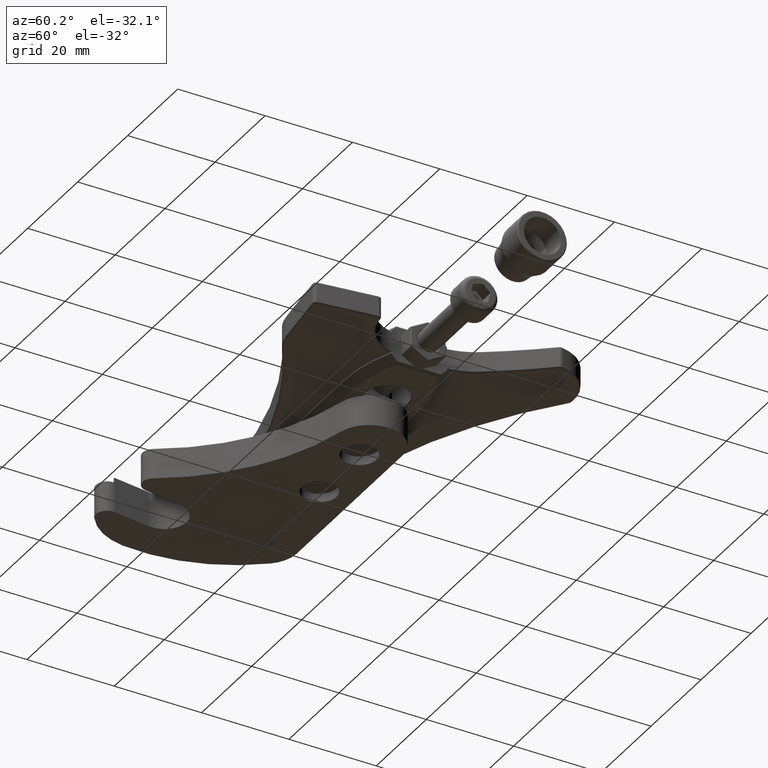
[diagram: clean part render]
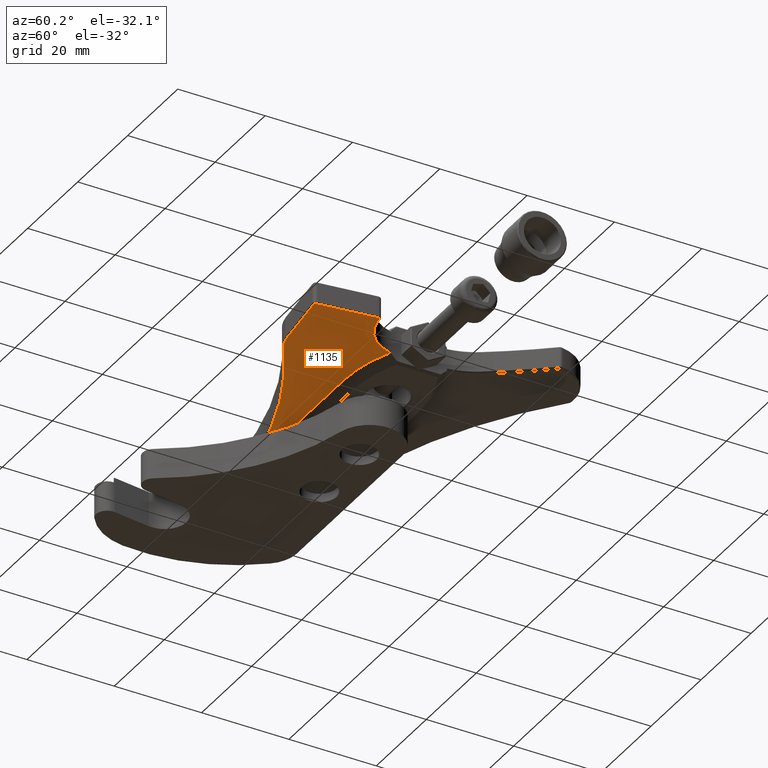
[diagram: same view with one face highlighted and labeled with its STEP entity id]
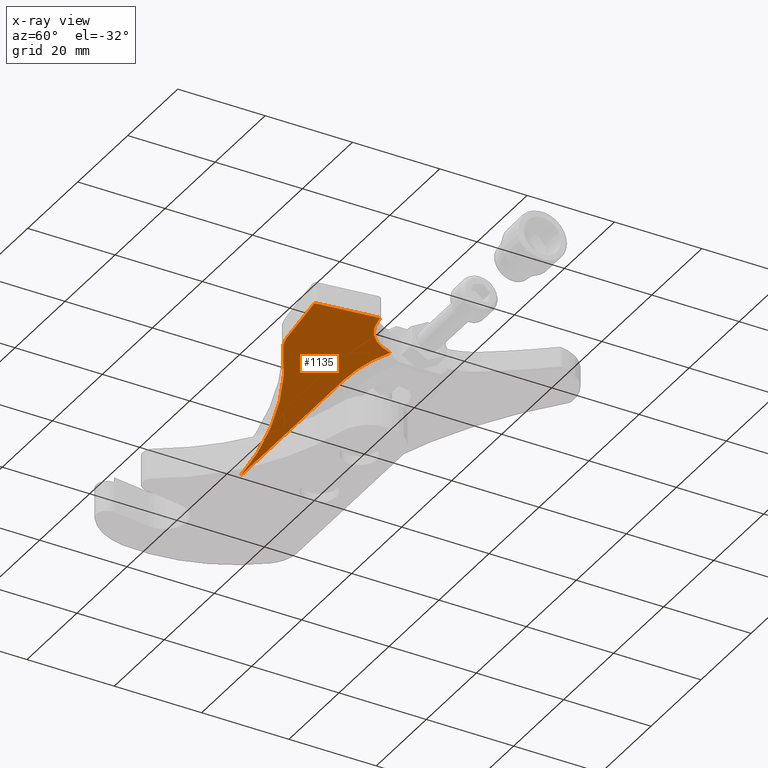
[diagram: x-ray of the same camera — body ghosted, the highlighted face saturated]
A machine part, auxiliary view. The second image highlights one B-rep face of the part: STEP entity #1135.
The next image is the same camera in x-ray: the body ghosted, the highlighted face saturated — about 0% of this face is hidden behind the body in this view.
In plain terms, the highlighted planar face has unit normal (0, 0, -1).
Its self-contained STEP definition (entity closure, byte-faithful):
#189 = AXIS2_PLACEMENT_3D ( 'NONE', #7229, #7230, #7231 ) ;
#289 = AXIS2_PLACEMENT_3D ( 'NONE', #6369, #6373, #6374 ) ;
#345 = CARTESIAN_POINT ( 'NONE',  ( -2.177953520657659200, -0.3603380443561884400, 0.09842519685039370600 ) ) ;
#505 = EDGE_LOOP ( 'NONE', ( #2060, #2059, #2058, #2057, #2056, #2055, #2054, #2053, #2052, #2051, #2050, #2049 ) ) ;
#533 = VERTEX_POINT ( 'NONE', #3130 ) ;
#534 = VERTEX_POINT ( 'NONE', #3128 ) ;
#574 = VERTEX_POINT ( 'NONE', #1812 ) ;
#575 = VERTEX_POINT ( 'NONE', #1811 ) ;
#577 = VERTEX_POINT ( 'NONE', #345 ) ;
#897 = EDGE_CURVE ( 'NONE', #1723, #1683, #5154, .T. ) ;
#1135 = ADVANCED_FACE ( 'NONE', ( #6947 ), #6371, .T. ) ;
#1683 = VERTEX_POINT ( 'NONE', #2722 ) ;
#1691 = VERTEX_POINT ( 'NONE', #2730 ) ;
#1692 = VERTEX_POINT ( 'NONE', #2731 ) ;
#1702 = VERTEX_POINT ( 'NONE', #2741 ) ;
#1723 = VERTEX_POINT ( 'NONE', #2762 ) ;
#1743 = VERTEX_POINT ( 'NONE', #5425 ) ;
#1744 = VERTEX_POINT ( 'NONE', #5427 ) ;
#1811 = CARTESIAN_POINT ( 'NONE',  ( -2.537900989094236800, 0.2955175302336263100, 0.09842519685039370600 ) ) ;
#1812 = CARTESIAN_POINT ( 'NONE',  ( -2.707895592357207000, -0.2196421455834300100, 0.09842519685039370600 ) ) ;
#2049 = ORIENTED_EDGE ( 'NONE', *, *, #4691, .T. ) ;
#2050 = ORIENTED_EDGE ( 'NONE', *, *, #897, .T. ) ;
#2051 = ORIENTED_EDGE ( 'NONE', *, *, #4690, .T. ) ;
#2052 = ORIENTED_EDGE ( 'NONE', *, *, #4689, .T. ) ;
#2053 = ORIENTED_EDGE ( 'NONE', *, *, #4688, .T. ) ;
#2054 = ORIENTED_EDGE ( 'NONE', *, *, #4687, .T. ) ;
#2055 = ORIENTED_EDGE ( 'NONE', *, *, #4686, .T. ) ;
#2056 = ORIENTED_EDGE ( 'NONE', *, *, #4674, .F. ) ;
#2057 = ORIENTED_EDGE ( 'NONE', *, *, #4676, .F. ) ;
#2058 = ORIENTED_EDGE ( 'NONE', *, *, #6724, .F. ) ;
#2059 = ORIENTED_EDGE ( 'NONE', *, *, #4685, .T. ) ;
#2060 = ORIENTED_EDGE ( 'NONE', *, *, #4684, .T. ) ;
#2722 = CARTESIAN_POINT ( 'NONE',  ( -2.692814475389584800, -0.2435703697341935500, 0.09842519685039370600 ) ) ;
#2730 = CARTESIAN_POINT ( 'NONE',  ( -2.102626310044634300, 0.4732001150203758400, 0.09842519685039379000 ) ) ;
#2731 = CARTESIAN_POINT ( 'NONE',  ( -1.643793219535232700, 0.1892268644794063400, 0.09842519685039379000 ) ) ;
#2741 = CARTESIAN_POINT ( 'NONE',  ( -1.998887565073249600, -0.3587936471039663800, 0.09842519685039370600 ) ) ;
#2762 = CARTESIAN_POINT ( 'NONE',  ( -2.708390921798014400, -0.2240656991750042400, 0.09842519685039370600 ) ) ;
#3128 = CARTESIAN_POINT ( 'NONE',  ( -2.592883198976201300, 0.2874792889555695100, 0.09842519685039370600 ) ) ;
#3130 = CARTESIAN_POINT ( 'NONE',  ( -2.568954974825441000, 0.3025604059231890600, 0.09842519685039370600 ) ) ;
#3960 = CIRCLE ( 'NONE', #5268, 1.270000000000015800 ) ;
#3963 = LINE ( 'NONE', #6165, #3971 ) ;
#3971 = VECTOR ( 'NONE', #6170, 39.37007874015748900 ) ;
#3980 = CIRCLE ( 'NONE', #5273, 4.009999999999798200 ) ;
#3981 = CIRCLE ( 'NONE', #5272, 0.3899999999999677100 ) ;
#3982 = CIRCLE ( 'NONE', #5274, 0.4100000000000022000 ) ;
#3983 = LINE ( 'NONE', #6192, #3985 ) ;
#3984 = CIRCLE ( 'NONE', #5275, 0.01999999999999978500 ) ;
#3985 = VECTOR ( 'NONE', #6193, 39.37007874015747400 ) ;
#3986 = LINE ( 'NONE', #6197, #3988 ) ;
#3987 = CIRCLE ( 'NONE', #5276, 0.02000000000000033300 ) ;
#3988 = VECTOR ( 'NONE', #6198, 39.37007874015748100 ) ;
#3989 = LINE ( 'NONE', #6202, #3991 ) ;
#3991 = VECTOR ( 'NONE', #6203, 39.37007874015748100 ) ;
#4100 = CIRCLE ( 'NONE', #5317, 0.3700000000000020500 ) ;
#4674 = EDGE_CURVE ( 'NONE', #1691, #1692, #3960, .T. ) ;
#4676 = EDGE_CURVE ( 'NONE', #1692, #1743, #3963, .T. ) ;
#4684 = EDGE_CURVE ( 'NONE', #577, #1702, #3981, .T. ) ;
#4685 = EDGE_CURVE ( 'NONE', #1702, #1744, #3980, .T. ) ;
#4686 = EDGE_CURVE ( 'NONE', #1691, #575, #3982, .T. ) ;
#4687 = EDGE_CURVE ( 'NONE', #575, #533, #3983, .T. ) ;
#4688 = EDGE_CURVE ( 'NONE', #533, #534, #3984, .T. ) ;
#4689 = EDGE_CURVE ( 'NONE', #534, #574, #3986, .T. ) ;
#4690 = EDGE_CURVE ( 'NONE', #574, #1723, #3987, .T. ) ;
#4691 = EDGE_CURVE ( 'NONE', #1683, #577, #3989, .T. ) ;
#5154 = CIRCLE ( 'NONE', #189, 0.02000000000000033300 ) ;
#5268 = AXIS2_PLACEMENT_3D ( 'NONE', #6166, #6167, #6168 ) ;
#5272 = AXIS2_PLACEMENT_3D ( 'NONE', #6189, #6190, #6191 ) ;
#5273 = AXIS2_PLACEMENT_3D ( 'NONE', #6194, #6195, #6196 ) ;
#5274 = AXIS2_PLACEMENT_3D ( 'NONE', #6199, #6200, #6201 ) ;
#5275 = AXIS2_PLACEMENT_3D ( 'NONE', #6204, #6205, #6206 ) ;
#5276 = AXIS2_PLACEMENT_3D ( 'NONE', #6207, #6208, #6209 ) ;
#5317 = AXIS2_PLACEMENT_3D ( 'NONE', #5738, #5739, #5741 ) ;
#5425 = CARTESIAN_POINT ( 'NONE',  ( -0.1234357918386555500, -0.3488031039041468700, 0.09842519685039379000 ) ) ;
#5427 = CARTESIAN_POINT ( 'NONE',  ( -0.08824624363902812400, -0.3593224185652831300, 0.09842519685039379000 ) ) ;
#5738 = CARTESIAN_POINT ( 'NONE',  ( 0.0000000000000000000, 0.0000000000000000000, 0.09842519685039379000 ) ) ;
#5739 = DIRECTION ( 'NONE',  ( 0.0000000000000000000, 0.0000000000000000000, 1.000000000000000000 ) ) ;
#5741 = DIRECTION ( 'NONE',  ( 1.000000000000000000, 0.0000000000000000000, 0.0000000000000000000 ) ) ;
#6165 = CARTESIAN_POINT ( 'NONE',  ( -0.1234357918386555500, -0.3488031039041462100, 0.09842519685039379000 ) ) ;
#6166 = CARTESIAN_POINT ( 'NONE',  ( -1.220108204305002400, 1.386469950853014900, 0.09842519685039379000 ) ) ;
#6167 = DIRECTION ( 'NONE',  ( 0.0000000000000000000, 0.0000000000000000000, 1.000000000000000000 ) ) ;
#6168 = DIRECTION ( 'NONE',  ( 1.000000000000000000, 0.0000000000000000000, 0.0000000000000000000 ) ) ;
#6170 = DIRECTION ( 'NONE',  ( 0.9427110916327491300, -0.3336102482127764100, 0.0000000000000000000 ) ) ;
#6189 = CARTESIAN_POINT ( 'NONE',  ( -2.091694225622011200, 0.02000303154800003200, 0.09842519685039370600 ) ) ;
#6190 = DIRECTION ( 'NONE',  ( 0.0000000000000000000, 0.0000000000000000000, 1.000000000000000000 ) ) ;
#6191 = DIRECTION ( 'NONE',  ( 1.000000000000000000, 0.0000000000000000000, 0.0000000000000000000 ) ) ;
#6192 = CARTESIAN_POINT ( 'NONE',  ( -2.568954974825445400, 0.3025604059231898300, 0.09842519685039370600 ) ) ;
#6193 = DIRECTION ( 'NONE',  ( -0.9752335279593291600, 0.2211776795791121100, 0.0000000000000000000 ) ) ;
#6194 = CARTESIAN_POINT ( 'NONE',  ( -1.044644721997008100, -4.253600522475037900, 0.09842519685039370600 ) ) ;
#6195 = DIRECTION ( 'NONE',  ( -0.0000000000000000000, -0.0000000000000000000, -1.000000000000000000 ) ) ;
#6196 = DIRECTION ( 'NONE',  ( 1.000000000000000000, -8.856365066742447100E-015, 0.0000000000000000000 ) ) ;
#6197 = CARTESIAN_POINT ( 'NONE',  ( -2.707895592357204800, -0.2196421455834324800, 0.09842519685039370600 ) ) ;
#6198 = DIRECTION ( 'NONE',  ( -0.2211776795787990200, -0.9752335279594001000, 0.0000000000000000000 ) ) ;
#6199 = CARTESIAN_POINT ( 'NONE',  ( -2.447218140467013900, 0.6953632766970019300, 0.09842519685039370600 ) ) ;
#6200 = DIRECTION ( 'NONE',  ( -0.0000000000000000000, -0.0000000000000000000, -1.000000000000000000 ) ) ;
#6201 = DIRECTION ( 'NONE',  ( 1.000000000000000000, 0.0000000000000000000, 0.0000000000000000000 ) ) ;
#6202 = CARTESIAN_POINT ( 'NONE',  ( -2.177953520657659200, -0.3603380443561884400, 0.09842519685039370600 ) ) ;
#6203 = DIRECTION ( 'NONE',  ( 0.9752335279594451800, -0.2211776795786001300, 0.0000000000000000000 ) ) ;
#6204 = CARTESIAN_POINT ( 'NONE',  ( -2.573378528417016300, 0.2830557353640000300, 0.09842519685039370600 ) ) ;
#6205 = DIRECTION ( 'NONE',  ( 0.0000000000000000000, 0.0000000000000000000, 1.000000000000000000 ) ) ;
#6206 = DIRECTION ( 'NONE',  ( 1.000000000000000000, 0.0000000000000000000, 0.0000000000000000000 ) ) ;
#6207 = CARTESIAN_POINT ( 'NONE',  ( -2.688390921798014000, -0.2240656991750042400, 0.09842519685039370600 ) ) ;
#6208 = DIRECTION ( 'NONE',  ( 0.0000000000000000000, 0.0000000000000000000, 1.000000000000000000 ) ) ;
#6209 = DIRECTION ( 'NONE',  ( 1.000000000000000000, 0.0000000000000000000, 0.0000000000000000000 ) ) ;
#6369 = CARTESIAN_POINT ( 'NONE',  ( 0.0000000000000000000, 0.0000000000000000000, 0.09842519685039370600 ) ) ;
#6371 = PLANE ( 'NONE',  #289 ) ;
#6373 = DIRECTION ( 'NONE',  ( 0.0000000000000000000, 0.0000000000000000000, 1.000000000000000000 ) ) ;
#6374 = DIRECTION ( 'NONE',  ( 1.000000000000000000, 0.0000000000000000000, 0.0000000000000000000 ) ) ;
#6724 = EDGE_CURVE ( 'NONE', #1743, #1744, #4100, .T. ) ;
#6947 = FACE_OUTER_BOUND ( 'NONE', #505, .T. ) ;
#7229 = CARTESIAN_POINT ( 'NONE',  ( -2.688390921798014000, -0.2240656991750042400, 0.09842519685039370600 ) ) ;
#7230 = DIRECTION ( 'NONE',  ( 0.0000000000000000000, 0.0000000000000000000, 1.000000000000000000 ) ) ;
#7231 = DIRECTION ( 'NONE',  ( 1.000000000000000000, 0.0000000000000000000, 0.0000000000000000000 ) ) ;